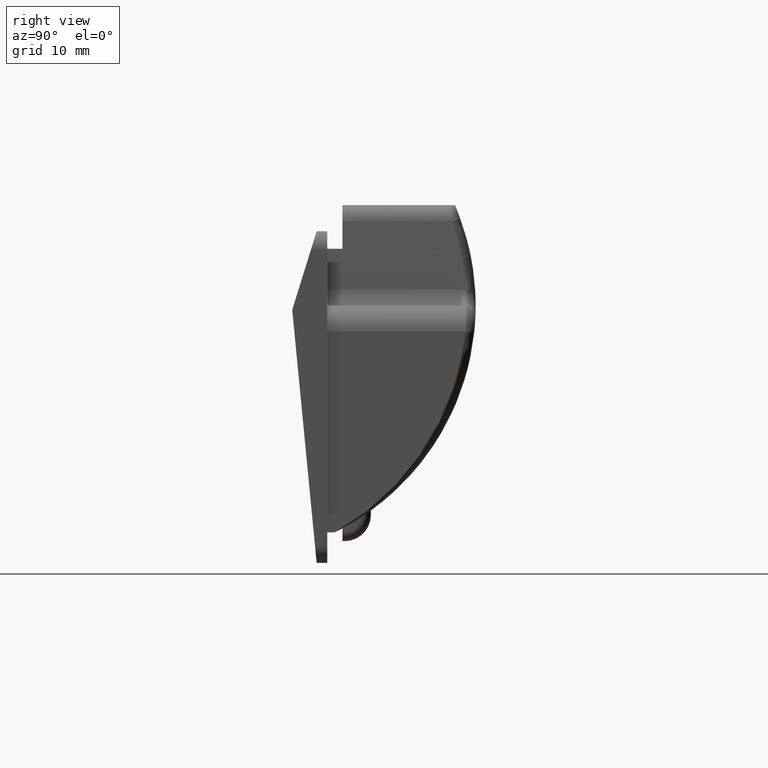
[diagram: clean part render]
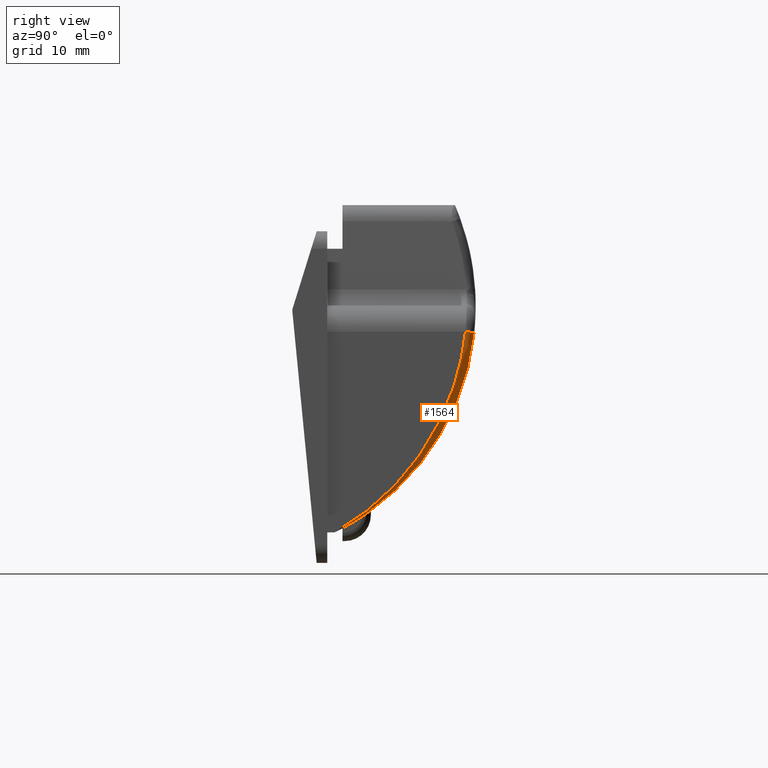
[diagram: same view with one face highlighted and labeled with its STEP entity id]
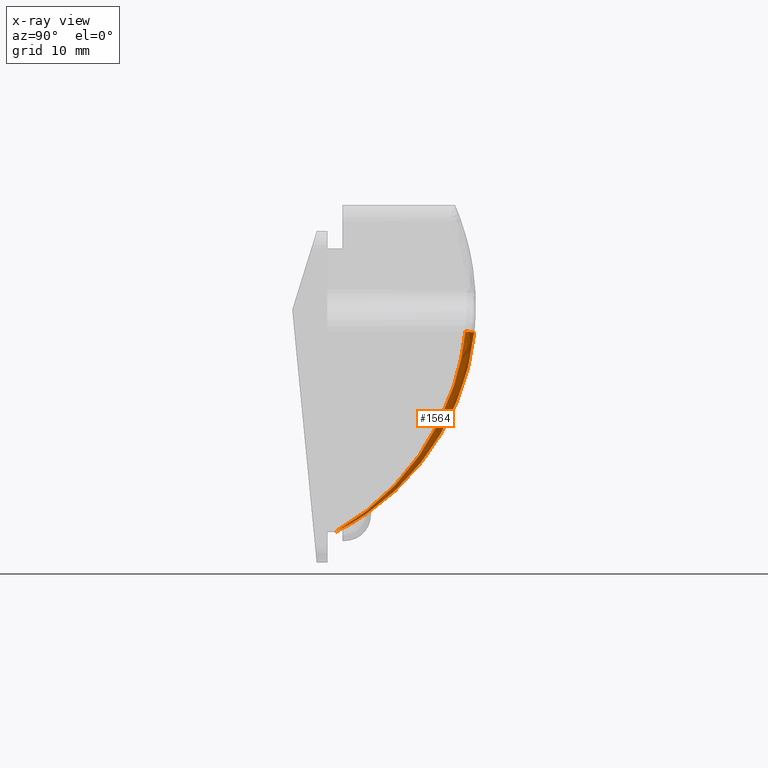
[diagram: x-ray of the same camera — body ghosted, the highlighted face saturated]
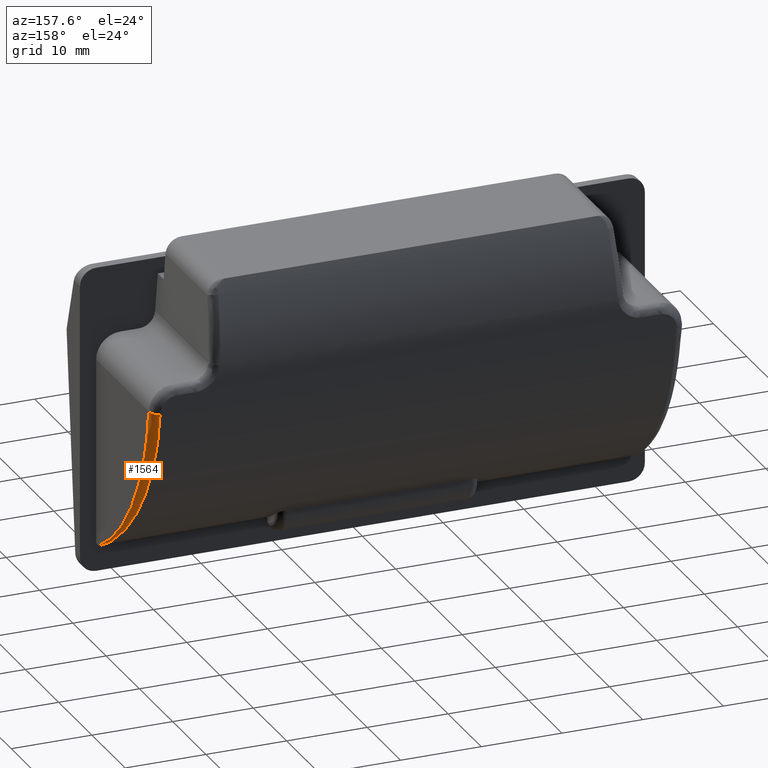
[diagram: same view with one face highlighted and labeled with its STEP entity id]
A machine part, right view. The second image highlights one B-rep face of the part: STEP entity #1564.
The next image is the same camera in x-ray: the body ghosted, the highlighted face saturated — about 0% of this face is hidden behind the body in this view.
A second angle (auxiliary view) of the same face is appended — the face is thin or edge-on in the first view.
In plain terms, the highlighted face is a freeform B-spline surface patch.
Its self-contained STEP definition (entity closure, byte-faithful):
#4 = CARTESIAN_POINT ( 'NONE',  ( 32.99999999998737400, 16.70300885055098700, 5.435982975352105000 ) ) ;
#22 = CARTESIAN_POINT ( 'NONE',  ( 32.99999999999995000, 0.8452325786653565000, -16.24999999999987900 ) ) ;
#39 = CARTESIAN_POINT ( 'NONE',  ( 32.11404258966066300, 14.72338672482740100, -1.529581798516154200 ) ) ;
#46 = EDGE_LOOP ( 'NONE', ( #732, #446, #473 ) ) ;
#49 = CARTESIAN_POINT ( 'NONE',  ( 32.14648437503910100, 14.23312463767132000, -2.671619303465260200 ) ) ;
#50 = CARTESIAN_POINT ( 'NONE',  ( 32.28286345691748200, 12.21477794852119000, -6.208333649131243500 ) ) ;
#54 = CARTESIAN_POINT ( 'NONE',  ( 33.00000000000000000, 5.090854368389241100, -13.36631434710976100 ) ) ;
#63 = CARTESIAN_POINT ( 'NONE',  ( 32.45163762144779400, 9.694275203025688000, -9.494982778757318400 ) ) ;
#73 = CARTESIAN_POINT ( 'NONE',  ( 32.62939973371035800, 6.957162645490490700, -12.19599503632543500 ) ) ;
#82 = CARTESIAN_POINT ( 'NONE',  ( 32.00000000000000000, 16.83306545036974800, 6.642857142857049100 ) ) ;
#84 = CARTESIAN_POINT ( 'NONE',  ( 32.81160905604316700, 4.031105423837402700, -14.41617165862395200 ) ) ;
#194 = CARTESIAN_POINT ( 'NONE',  ( 32.99999999999999300, 10.88588692710205000, -6.959499183001680600 ) ) ;
#209 = CARTESIAN_POINT ( 'NONE',  ( 33.00000000000000700, 14.20223565461469800, -0.3828904726064741900 ) ) ;
#226 = CARTESIAN_POINT ( 'NONE',  ( 33.00000000000000700, 6.222652843153937900, -12.37444569052263100 ) ) ;
#248 = CARTESIAN_POINT ( 'NONE',  ( 33.00000000000000000, 4.869393981790440600, -13.56422133526020200 ) ) ;
#262 = CARTESIAN_POINT ( 'NONE',  ( 32.35937499997255200, 11.08082831297906000, -7.849682348343471000 ) ) ;
#275 = CARTESIAN_POINT ( 'NONE',  ( 32.99999999999995700, 16.83306545036979800, 6.642857142857042000 ) ) ;
#277 = CARTESIAN_POINT ( 'NONE',  ( 33.00000000000000000, 5.887677918189321100, -12.67773010995676200 ) ) ;
#284 = CARTESIAN_POINT ( 'NONE',  ( 32.41015625007064900, 10.32324753599536000, -8.801174459383409100 ) ) ;
#291 = CARTESIAN_POINT ( 'NONE',  ( 32.02864613851882300, 16.09845712136423400, 2.549647856322993200 ) ) ;
#302 = CARTESIAN_POINT ( 'NONE',  ( 33.00000000002526000, 5.983033610331447400, -13.03341406686348900 ) ) ;
#308 = CARTESIAN_POINT ( 'NONE',  ( 32.15162645866152500, 14.15821372346313600, -2.776543988494512200 ) ) ;
#322 = CARTESIAN_POINT ( 'NONE',  ( 32.30194767209810200, 11.93224741456896800, -6.628592032507931700 ) ) ;
#330 = EDGE_CURVE ( 'NONE', #2690, #1383, #1515, .T. ) ;
#333 = CARTESIAN_POINT ( 'NONE',  ( 32.46035741133251000, 9.562250652395118100, -9.642517642330576100 ) ) ;
#344 = CARTESIAN_POINT ( 'NONE',  ( 32.63183629114841700, 6.918899739141931300, -12.22897483480254300 ) ) ;
#352 = CARTESIAN_POINT ( 'NONE',  ( 32.00781250002545200, 16.49707942486915300, 4.237294799419295500 ) ) ;
#356 = CARTESIAN_POINT ( 'NONE',  ( 32.81294261662463900, 4.009167447386076300, -14.43070688289443200 ) ) ;
#446 = ORIENTED_EDGE ( 'NONE', *, *, #1634, .F. ) ;
#470 = CARTESIAN_POINT ( 'NONE',  ( 33.00000000000000700, 11.13244009673370800, -6.585245898695654400 ) ) ;
#473 = ORIENTED_EDGE ( 'NONE', *, *, #1991, .F. ) ;
#484 = CARTESIAN_POINT ( 'NONE',  ( 32.99999999999999300, 14.49335652309202700, 0.4494383367939435200 ) ) ;
#534 = CARTESIAN_POINT ( 'NONE',  ( 33.00000000000000000, 12.43116167857730000, -4.428449217730030100 ) ) ;
#544 = CARTESIAN_POINT ( 'NONE',  ( 33.00000000000000000, 10.57208428949942000, -7.459287656251610200 ) ) ;
#575 = CARTESIAN_POINT ( 'NONE',  ( 33.00000000000000000, 13.46178440314303900, -2.304620486130050300 ) ) ;
#582 = CARTESIAN_POINT ( 'NONE',  ( 32.05371114095701300, 15.67030596323330700, 1.063763981909010600 ) ) ;
#590 = CARTESIAN_POINT ( 'NONE',  ( 32.51757812492925100, 8.694877570257899500, -10.60179345236777900 ) ) ;
#598 = CARTESIAN_POINT ( 'NONE',  ( 32.17607335215345200, 13.79432857345542400, -3.503800709733886400 ) ) ;
#604 = CARTESIAN_POINT ( 'NONE',  ( 32.69140625003310400, 5.983033610393650100, -13.03341406688776000 ) ) ;
#608 = CARTESIAN_POINT ( 'NONE',  ( 32.30946901900814100, 11.82078133934077100, -6.789974679852006600 ) ) ;
#619 = CARTESIAN_POINT ( 'NONE',  ( 32.46308392693600100, 9.520935738926523200, -9.688354824100654700 ) ) ;
#629 = CARTESIAN_POINT ( 'NONE',  ( 32.65885336929373000, 6.494451735422766900, -12.59381996070980300 ) ) ;
#636 = CARTESIAN_POINT ( 'NONE',  ( 32.83398385827274500, 3.662929933386710200, -14.65975901037703200 ) ) ;
#732 = ORIENTED_EDGE ( 'NONE', *, *, #330, .T. ) ;
#738 = CARTESIAN_POINT ( 'NONE',  ( 33.00000000000000700, 7.098059783362977300, -11.55230637195264800 ) ) ;
#749 = CARTESIAN_POINT ( 'NONE',  ( 33.00000000000000000, 11.98726088820319900, -5.203294322538648800 ) ) ;
#761 = CARTESIAN_POINT ( 'NONE',  ( 33.00000000000000000, 14.98803512896281700, 2.138537253261342900 ) ) ;
#793 = CARTESIAN_POINT ( 'NONE',  ( 33.00000000000000000, 14.68729622291481900, 1.006148619473470100 ) ) ;
#803 = CARTESIAN_POINT ( 'NONE',  ( 33.00000000000000000, 5.793533112741139100, -12.78937332464354200 ) ) ;
#816 = CARTESIAN_POINT ( 'NONE',  ( 33.00000000004207800, 1.933522285790362000, -15.71233329218290800 ) ) ;
#830 = CARTESIAN_POINT ( 'NONE',  ( 32.05859375003859700, 15.58227841752700000, 0.7116720753324490300 ) ) ;
#832 = CARTESIAN_POINT ( 'NONE',  ( 32.00000000000000000, 16.83306545036974800, 6.642857142857049100 ) ) ;
#841 = CARTESIAN_POINT ( 'NONE',  ( 32.99999999999995700, 16.83306545036979800, 6.642857142857042000 ) ) ;
#842 = CARTESIAN_POINT ( 'NONE',  ( 32.07379667361851700, 15.34675883628700500, 0.09606117074035988600 ) ) ;
#852 = CARTESIAN_POINT ( 'NONE',  ( 32.99999999997470500, 7.824095123420978100, -11.45091287932813600 ) ) ;
#857 = CARTESIAN_POINT ( 'NONE',  ( 32.18212552046202300, 13.70448802310387000, -3.676826752820423900 ) ) ;
#863 = CARTESIAN_POINT ( 'NONE',  ( 32.99999999997474000, 8.694877570310078200, -10.60179345238422000 ) ) ;
#868 = CARTESIAN_POINT ( 'NONE',  ( 32.31180247687352400, 11.78618835081953100, -6.839682637304408200 ) ) ;
#876 = CARTESIAN_POINT ( 'NONE',  ( 32.51554247061573500, 8.723280048828195600, -10.54566524191651000 ) ) ;
#884 = CARTESIAN_POINT ( 'NONE',  ( 32.73209515810720700, 5.325586523238374800, -13.50760397212717300 ) ) ;
#887 = CARTESIAN_POINT ( 'NONE',  ( 32.00000000000000000, 16.83306545036974800, 6.642857142857049100 ) ) ;
#892 = CARTESIAN_POINT ( 'NONE',  ( 32.92195560511749600, 2.190590512532216500, -15.54813243106552000 ) ) ;
#985 = CARTESIAN_POINT ( 'NONE',  ( 33.00000000000000700, 8.431746284231103100, -10.14014006299226100 ) ) ;
#986 = B_SPLINE_CURVE_WITH_KNOTS ( 'NONE', 3,
 ( #3313, #1595, #1929, #2661, #2910, #1114, #1658, #3090, #54, #277, #226, #1989, #3204, #738, #2563, #985, #2827, #1252, #3078, #1512, #3367, #1803, #194, #2071, #470, #2324, #749, #2580, #999, #2841, #1260, #3097, #1530, #3377, #1818, #209, #2081, #484, #2337, #761, #2590, #1012, #2857, #1272, #3108 ),
 .UNSPECIFIED., .F., .F.,
 ( 4, 1, 1, 2, 2, 1, 1, 2, 2, 1, 1, 2, 2, 1, 1, 2, 2, 1, 1, 2, 2, 1, 1, 2, 2, 1, 2, 2, 4 ),
 ( 0.0000000000000000000, 0.06250000000000025000, 0.09375000000000026400, 0.1093750000000002600, 0.1250000000000002800, 0.1875000000000003100, 0.2187500000000003100, 0.2343750000000003300, 0.2500000000000003300, 0.3125000000000002200, 0.3437500000000002200, 0.3593750000000002800, 0.3750000000000003300, 0.4375000000000001100, 0.4687500000000000600, 0.4843750000000000000, 0.4999999999999999400, 0.5624999999999997800, 0.5937499999999996700, 0.6093749999999997800, 0.6249999999999997800, 0.6875000000000000000, 0.7187500000000001100, 0.7343750000000000000, 0.7500000000000000000, 0.8125000000000000000, 0.8437500000000000000, 0.8750000000000000000, 1.000000000000000000 ),
 .UNSPECIFIED. ) ;
#999 = CARTESIAN_POINT ( 'NONE',  ( 33.00000000000000000, 12.68271515823235300, -3.897558294071827400 ) ) ;
#1012 = CARTESIAN_POINT ( 'NONE',  ( 33.00000000000000700, 15.20177669146854900, 2.996353030703813800 ) ) ;
#1044 = CARTESIAN_POINT ( 'NONE',  ( 33.00000000000000000, 8.352121328796778600, -10.26156907911032000 ) ) ;
#1055 = CARTESIAN_POINT ( 'NONE',  ( 33.00000000000412800, 5.012762166755276600, -13.76678927556183200 ) ) ;
#1064 = CARTESIAN_POINT ( 'NONE',  ( 33.00000000000000000, 7.534895445772430200, -11.13803999911509900 ) ) ;
#1076 = CARTESIAN_POINT ( 'NONE',  ( 32.93749988161729900, 1.933522280367109900, -15.71233329494890000 ) ) ;
#1083 = CARTESIAN_POINT ( 'NONE',  ( 32.00000000000000000, 16.83306545036974800, 6.642857142857049100 ) ) ;
#1093 = CARTESIAN_POINT ( 'NONE',  ( 33.00000000000000000, 11.85230490040021900, -5.462413615346339800 ) ) ;
#1098 = CARTESIAN_POINT ( 'NONE',  ( 32.08282886152537100, 15.20487904170183100, -0.2947654367081232700 ) ) ;
#1112 = CARTESIAN_POINT ( 'NONE',  ( 32.18399727844605000, 13.67671832146478300, -3.729854220209920500 ) ) ;
#1114 = CARTESIAN_POINT ( 'NONE',  ( 33.00000000000000000, 3.652525171916180600, -14.46011437706282100 ) ) ;
#1119 = CARTESIAN_POINT ( 'NONE',  ( 32.99999999998309600, 12.47086392568883700, -5.859300852574986800 ) ) ;
#1123 = CARTESIAN_POINT ( 'NONE',  ( 32.35859504236627500, 11.09148497491973900, -7.804249777394495000 ) ) ;
#1134 = CARTESIAN_POINT ( 'NONE',  ( 32.57224422653657600, 7.849036956797247600, -11.39507193378362300 ) ) ;
#1150 = CARTESIAN_POINT ( 'NONE',  ( 32.77176840835620200, 4.683047141774293800, -13.97133197292585300 ) ) ;
#1159 = CARTESIAN_POINT ( 'NONE',  ( 33.00000000000000000, 0.8452325786653279700, -16.25000000000000000 ) ) ;
#1252 = CARTESIAN_POINT ( 'NONE',  ( 33.00000000000000000, 8.919661005204730500, -9.572350024319966600 ) ) ;
#1260 = CARTESIAN_POINT ( 'NONE',  ( 33.00000000000000700, 12.88225160924179800, -3.498871508079627100 ) ) ;
#1272 = CARTESIAN_POINT ( 'NONE',  ( 32.99999999999999300, 15.71268661687400800, 5.579887050679730900 ) ) ;
#1305 = CARTESIAN_POINT ( 'NONE',  ( 33.00000000001674700, 16.49707942486598700, 4.237294799415606900 ) ) ;
#1316 = CARTESIAN_POINT ( 'NONE',  ( 33.00000000000417800, 13.10331300631138000, -4.820419708557616400 ) ) ;
#1341 = CARTESIAN_POINT ( 'NONE',  ( 32.87499999994720700, 2.988001279042344900, -15.10625217194325000 ) ) ;
#1357 = CARTESIAN_POINT ( 'NONE',  ( 32.08504407244447500, 15.17030193599934400, -0.3878048388614701000 ) ) ;
#1365 = CARTESIAN_POINT ( 'NONE',  ( 32.99999999999575800, 14.23312463766367300, -2.671619303459562600 ) ) ;
#1366 = CARTESIAN_POINT ( 'NONE',  ( 32.26562500002734900, 12.47086392568186000, -5.859300852586880400 ) ) ;
#1371 = CARTESIAN_POINT ( 'NONE',  ( 32.22273675438671600, 13.10336947189988000, -4.782350283122942100 ) ) ;
#1383 = VERTEX_POINT ( 'NONE', #3321 ) ;
#1386 = CARTESIAN_POINT ( 'NONE',  ( 32.40941416209963700, 10.33083591897525500, -8.754872280282226500 ) ) ;
#1388 = VERTEX_POINT ( 'NONE', #1454 ) ;
#1393 = CARTESIAN_POINT ( 'NONE',  ( 32.11328124996140300, 14.73048251070606100, -1.561708938999375000 ) ) ;
#1395 = CARTESIAN_POINT ( 'NONE',  ( 32.60580639993244700, 7.326731991402564100, -11.87225593557728400 ) ) ;
#1404 = CARTESIAN_POINT ( 'NONE',  ( 32.79863388417479100, 4.244209164365520900, -14.27369282591893200 ) ) ;
#1454 = CARTESIAN_POINT ( 'NONE',  ( 33.00000000000000000, 0.8452325786653279700, -16.25000000000000000 ) ) ;
#1512 = CARTESIAN_POINT ( 'NONE',  ( 33.00000000000000000, 9.489780149187707200, -8.883605685061562300 ) ) ;
#1515 =( BOUNDED_CURVE ( )  B_SPLINE_CURVE ( 2, ( #832, #841, #2105 ),
 .UNSPECIFIED., .F., .F. ) 
 B_SPLINE_CURVE_WITH_KNOTS ( ( 3, 3 ),
 ( 0.0000000000000000000, 1.000000000000000000 ),
 .UNSPECIFIED. ) 
 CURVE ( )  GEOMETRIC_REPRESENTATION_ITEM ( )  RATIONAL_B_SPLINE_CURVE ( ( 1.000000000000000000, 0.7071067811865220400, 1.000000000000000000 ) ) 
 REPRESENTATION_ITEM ( '' )  );
#1530 = CARTESIAN_POINT ( 'NONE',  ( 33.00000000000000000, 13.56526739950023800, -2.032399901261591400 ) ) ;
#1564 = ADVANCED_FACE ( 'NONE', ( #1947 ), #2570, .T. ) ;
#1595 = CARTESIAN_POINT ( 'NONE',  ( 32.99999999999999300, 1.374010219651666800, -15.95397679044651600 ) ) ;
#1634 = EDGE_CURVE ( 'NONE', #1388, #1383, #986, .T. ) ;
#1639 = CARTESIAN_POINT ( 'NONE',  ( 32.09919462574606500, 14.94989028896712000, -0.9761256161620404100 ) ) ;
#1650 = CARTESIAN_POINT ( 'NONE',  ( 32.99999999996620700, 14.73048251072345300, -1.561708938991507800 ) ) ;
#1657 = CARTESIAN_POINT ( 'NONE',  ( 32.26575304916004000, 12.46783909599735400, -5.819855034171442100 ) ) ;
#1658 = CARTESIAN_POINT ( 'NONE',  ( 32.99999999999999300, 3.776392424738871600, -14.37024057193940300 ) ) ;
#1668 = CARTESIAN_POINT ( 'NONE',  ( 32.43956703876849400, 9.876744803901649700, -9.288154550027602600 ) ) ;
#1680 = CARTESIAN_POINT ( 'NONE',  ( 32.62599753992973500, 7.010559684245381900, -12.14980513450384900 ) ) ;
#1694 = CARTESIAN_POINT ( 'NONE',  ( 32.22265624996089200, 13.10331300630374000, -4.820419708551970200 ) ) ;
#1698 = CARTESIAN_POINT ( 'NONE',  ( 32.80974502720496800, 4.061758930992390000, -14.39582102079099400 ) ) ;
#1803 = CARTESIAN_POINT ( 'NONE',  ( 32.99999999999999300, 10.63652414166032900, -7.329892774418823400 ) ) ;
#1818 = CARTESIAN_POINT ( 'NONE',  ( 32.99999999999999300, 14.10111607517766600, -0.6601269056069767300 ) ) ;
#1860 = CARTESIAN_POINT ( 'NONE',  ( 33.00000000000000000, 15.83882181415010100, 6.749999999999909400 ) ) ;
#1872 = CARTESIAN_POINT ( 'NONE',  ( 33.00000000000000000, 0.8452325786653569500, -16.25000000000000000 ) ) ;
#1880 = B_SPLINE_CURVE_WITH_KNOTS ( 'NONE', 3,
 ( #1083, #2926, #1902, #291, #2166, #582, #2416, #842, #2678, #1098, #2941, #1357, #3201, #1639, #39, #1914, #308, #2178, #598, #2430, #857, #2691, #1112, #2956, #1371, #3214, #1657, #50, #1924, #322, #2194, #608, #2440, #868, #2706, #1123, #2964, #1386, #3226, #1668, #63, #1936, #333, #2203, #619, #2449, #876, #2715, #1134, #2972, #1395, #3240, #1680, #73, #1950, #344, #2212, #629, #2464, #884, #2726, #1150, #2984, #1404, #3251, #1698, #84, #1959, #356, #2221, #636, #2472, #892, #2733, #1159 ),
 .UNSPECIFIED., .F., .F.,
 ( 4, 2, 2, 1, 1, 1, 1, 2, 2, 2, 1, 1, 1, 1, 2, 2, 2, 2, 1, 1, 1, 2, 2, 2, 2, 1, 1, 1, 2, 2, 2, 2, 1, 1, 1, 1, 2, 2, 2, 2, 1, 1, 1, 1, 1, 2, 2, 2, 4 ),
 ( 0.0000000000000000000, 0.1249999999999963100, 0.1874999999999944500, 0.2187499999999935300, 0.2343749999999930600, 0.2421874999999927800, 0.2460937499999926200, 0.2480468749999925300, 0.2499999999999924500, 0.3124999999999887900, 0.3437499999999869500, 0.3593749999999861200, 0.3671874999999857300, 0.3710937499999855100, 0.3730468749999854000, 0.3749999999999852900, 0.4374999999999811800, 0.4687499999999791800, 0.4843749999999782400, 0.4921874999999778500, 0.4960937499999776800, 0.4980468749999776300, 0.4999999999999775700, 0.5624999999999762400, 0.5937499999999756900, 0.6093749999999753500, 0.6171874999999752400, 0.6210937499999750200, 0.6230468749999749100, 0.6249999999999749100, 0.6874999999999752400, 0.7187499999999755800, 0.7343749999999756900, 0.7421874999999756900, 0.7460937499999758000, 0.7480468749999758000, 0.7490234374999759100, 0.7499999999999760200, 0.8124999999999883400, 0.8437499999999945600, 0.8593749999999974500, 0.8671874999999990000, 0.8710937499999997800, 0.8730468750000002200, 0.8740234375000004400, 0.8745117187500004400, 0.8750000000000005600, 0.9375000000000003300, 1.000000000000000000 ),
 .UNSPECIFIED. ) ;
#1898 = CARTESIAN_POINT ( 'NONE',  ( 33.00000000000000000, 1.905856945229959900, -15.65628840135899900 ) ) ;
#1902 = CARTESIAN_POINT ( 'NONE',  ( 32.00716176351890100, 16.51343347777986600, 4.322517555568122600 ) ) ;
#1910 = CARTESIAN_POINT ( 'NONE',  ( 33.00000000001676200, 11.08082831297212700, -7.849682348355332600 ) ) ;
#1914 = CARTESIAN_POINT ( 'NONE',  ( 32.13870079278569800, 14.35189298340504900, -2.360731897358336900 ) ) ;
#1924 = CARTESIAN_POINT ( 'NONE',  ( 32.29155856039885500, 12.08611905815965500, -6.402445169391259400 ) ) ;
#1929 = CARTESIAN_POINT ( 'NONE',  ( 33.00000000000000700, 2.152123101180014200, -15.48582898674086800 ) ) ;
#1936 = CARTESIAN_POINT ( 'NONE',  ( 32.45773253155248000, 9.602012647900169300, -9.598276377354684600 ) ) ;
#1947 = FACE_OUTER_BOUND ( 'NONE', #46, .T. ) ;
#1950 = CARTESIAN_POINT ( 'NONE',  ( 32.63086121506565700, 6.934213531337522200, -12.21578384848360700 ) ) ;
#1959 = CARTESIAN_POINT ( 'NONE',  ( 32.81240904335120900, 4.017945647305758400, -14.42489286335852100 ) ) ;
#1989 = CARTESIAN_POINT ( 'NONE',  ( 32.99999999999999300, 6.444520374887512800, -12.17043899107192900 ) ) ;
#1991 = EDGE_CURVE ( 'NONE', #2690, #1388, #1880, .T. ) ;
#2071 = CARTESIAN_POINT ( 'NONE',  ( 33.00000000000001400, 11.05036419947055900, -6.711201429110297500 ) ) ;
#2081 = CARTESIAN_POINT ( 'NONE',  ( 33.00000000000000700, 14.25219554342577400, -0.2427445728977360400 ) ) ;
#2105 = CARTESIAN_POINT ( 'NONE',  ( 33.00000000000000000, 15.83882181415010100, 6.749999999999920100 ) ) ;
#2124 = CARTESIAN_POINT ( 'NONE',  ( 32.99999999999572300, 2.988001279069272700, -15.10625217196728100 ) ) ;
#2149 = CARTESIAN_POINT ( 'NONE',  ( 32.57421874996679600, 7.824095123358779900, -11.45091287930380000 ) ) ;
#2166 = CARTESIAN_POINT ( 'NONE',  ( 32.03759793600335800, 15.93992579227830200, 1.955985645016716600 ) ) ;
#2173 = CARTESIAN_POINT ( 'NONE',  ( 33.00000000000000000, 15.71325180490060300, 5.584759628465660000 ) ) ;
#2178 = CARTESIAN_POINT ( 'NONE',  ( 32.16775038973145200, 13.91802319369308800, -3.261466585897051300 ) ) ;
#2194 = CARTESIAN_POINT ( 'NONE',  ( 32.30720343402357700, 11.85436374433416300, -6.741574435635131500 ) ) ;
#2203 = CARTESIAN_POINT ( 'NONE',  ( 32.46211017017471800, 9.535693492926871100, -9.672005547407390900 ) ) ;
#2212 = CARTESIAN_POINT ( 'NONE',  ( 32.63240561141734700, 6.909956751742672800, -12.23666884047681200 ) ) ;
#2220 = CARTESIAN_POINT ( 'NONE',  ( 32.03710937497444900, 15.93671292466634900, 1.875133312836805100 ) ) ;
#2221 = CARTESIAN_POINT ( 'NONE',  ( 32.81331634925187800, 4.003018065017951000, -14.43477667465044200 ) ) ;
#2324 = CARTESIAN_POINT ( 'NONE',  ( 33.00000000000000000, 11.53121258781538400, -5.963269584212286000 ) ) ;
#2337 = CARTESIAN_POINT ( 'NONE',  ( 32.99999999999999300, 14.75871891431202000, 1.288017809340350300 ) ) ;
#2386 = CARTESIAN_POINT ( 'NONE',  ( 33.00000000000000000, 15.52224005438175100, 4.426499564254689800 ) ) ;
#2416 = CARTESIAN_POINT ( 'NONE',  ( 32.06243912061578500, 15.52754240303650800, 0.6172247463165656500 ) ) ;
#2425 = CARTESIAN_POINT ( 'NONE',  ( 33.00000000002529500, 10.32324753594324200, -8.801174459367041800 ) ) ;
#2430 = CARTESIAN_POINT ( 'NONE',  ( 32.18030008258629200, 13.73157631000883100, -3.624925968247270500 ) ) ;
#2440 = CARTESIAN_POINT ( 'NONE',  ( 32.31098232357283000, 11.79834774128785000, -6.822236747390810800 ) ) ;
#2449 = CARTESIAN_POINT ( 'NONE',  ( 32.48893152554940400, 9.129120607530158100, -10.12161617267351100 ) ) ;
#2464 = CARTESIAN_POINT ( 'NONE',  ( 32.68692914248220700, 6.049939594349968500, -12.95612349641425700 ) ) ;
#2472 = CARTESIAN_POINT ( 'NONE',  ( 32.85978112595074700, 3.236610619110199300, -14.93226206075360300 ) ) ;
#2563 = CARTESIAN_POINT ( 'NONE',  ( 33.00000000000000700, 7.729344281017345600, -10.91602754556509300 ) ) ;
#2570 =( BOUNDED_SURFACE ( )  B_SPLINE_SURFACE ( 2, 3, ( 
 ( #82, #2936, #352, #2220, #830, #1393, #49, #1694, #1366, #262, #284, #590, #2149, #604, #2922, #1341, #1076, #2674 ),
 ( #275, #4, #1305, #2635, #3424, #1650, #1365, #1316, #1119, #1910, #2425, #863, #852, #302, #1055, #2124, #816, #22 ),
 ( #1860, #2173, #2386, #2934, #793, #2951, #575, #534, #1093, #544, #2699, #1044, #1064, #803, #248, #3154, #1898, #1872 ) ),
 .UNSPECIFIED., .F., .F., .F. ) 
 B_SPLINE_SURFACE_WITH_KNOTS ( ( 3, 3 ),
 ( 4, 2, 2, 2, 2, 2, 2, 2, 4 ),
 ( 0.0000000000000000000, 1.000000000000000000 ),
 ( 1.678145242896770000, 1.803716893606630100, 1.929288544316495100, 2.054860195026359600, 2.180431845736219700, 2.306003496446085200, 2.431575147155950100, 2.557146797865809800, 2.682718448575674800 ),
 .UNSPECIFIED. ) 
 GEOMETRIC_REPRESENTATION_ITEM ( )  RATIONAL_B_SPLINE_SURFACE ( (
 ( 1.000000000000000000, 1.000000000000000000, 1.000000000000000000, 1.000000000000000000, 1.000000000000000000, 1.000000000000000000, 1.000000000000000000, 1.000000000000000000, 1.000000000000000000, 1.000000000000000000, 1.000000000000000000, 1.000000000000000000, 1.000000000000000000, 1.000000000000000000, 1.000000000000000000, 1.000000000000000000, 1.000000000000000000, 1.000000000000000000),
 ( 0.7071067811865220400, 0.7071067811865220400, 0.7071067811865470200, 0.7071067811865470200, 0.7071067811865710000, 0.7071067811865710000, 0.7071067811865710000, 0.7071067811865710000, 0.7071067811865590100, 0.7071067811865590100, 0.7071067811865200400, 0.7071067811865200400, 0.7071067811864950600, 0.7071067811864950600, 0.7071067811866310600, 0.7071067811866310600, 0.7071067811864860700, 0.7071067811865480200),
 ( 1.000000000000000000, 1.000000000000000000, 1.000000000000000000, 1.000000000000000000, 1.000000000000000000, 1.000000000000000000, 1.000000000000000000, 1.000000000000000000, 1.000000000000000000, 1.000000000000000000, 1.000000000000000000, 1.000000000000000000, 1.000000000000000000, 1.000000000000000000, 1.000000000000000000, 1.000000000000000000, 1.000000000000000000, 1.000000000000000000) ) ) 
 REPRESENTATION_ITEM ( '' )  SURFACE ( )  );
#2580 = CARTESIAN_POINT ( 'NONE',  ( 33.00000000000000000, 12.47997953306253100, -4.292850069738938700 ) ) ;
#2590 = CARTESIAN_POINT ( 'NONE',  ( 32.99999999999999300, 15.13290234393686300, 2.708203542847468000 ) ) ;
#2635 = CARTESIAN_POINT ( 'NONE',  ( 32.99999999998309600, 15.93671292466956800, 1.875133312840488300 ) ) ;
#2661 = CARTESIAN_POINT ( 'NONE',  ( 33.00000000000000700, 3.033577698047721600, -14.89745881767750100 ) ) ;
#2674 = CARTESIAN_POINT ( 'NONE',  ( 33.00000000000000000, 0.8452325786653569500, -16.25000000000000000 ) ) ;
#2678 = CARTESIAN_POINT ( 'NONE',  ( 32.07976917763687700, 15.25277411990372700, -0.1644994387654737100 ) ) ;
#2690 = VERTEX_POINT ( 'NONE', #887 ) ;
#2691 = CARTESIAN_POINT ( 'NONE',  ( 32.18334558615171700, 13.68638589218196300, -3.711424923761227600 ) ) ;
#2699 = CARTESIAN_POINT ( 'NONE',  ( 33.00000000000000000, 9.870713142915359800, -8.422186501567610500 ) ) ;
#2706 = CARTESIAN_POINT ( 'NONE',  ( 32.33482074004975000, 11.44489471168019900, -7.328378421609897100 ) ) ;
#2715 = CARTESIAN_POINT ( 'NONE',  ( 32.55777879874067100, 8.072809510819697100, -11.18261591968072800 ) ) ;
#2726 = CARTESIAN_POINT ( 'NONE',  ( 32.74765922262258800, 5.074539950891972000, -13.69275358150285100 ) ) ;
#2733 = CARTESIAN_POINT ( 'NONE',  ( 32.95833281660601700, 1.570766656864786200, -15.89155177006838000 ) ) ;
#2827 = CARTESIAN_POINT ( 'NONE',  ( 33.00000000000000000, 8.725469304740459000, -9.800424959363764900 ) ) ;
#2841 = CARTESIAN_POINT ( 'NONE',  ( 33.00000000000000700, 12.81599901760303000, -3.632896803269282800 ) ) ;
#2857 = CARTESIAN_POINT ( 'NONE',  ( 33.00000000000000700, 15.52166406773103300, 4.423836991643692200 ) ) ;
#2910 = CARTESIAN_POINT ( 'NONE',  ( 33.00000000000001400, 3.405698861366420500, -14.63625780277746500 ) ) ;
#2922 = CARTESIAN_POINT ( 'NONE',  ( 32.75195312505280000, 5.012762166782200000, -13.76678927558596000 ) ) ;
#2926 = CARTESIAN_POINT ( 'NONE',  ( 32.00000020345702000, 16.70920208616121300, 5.493453767689516100 ) ) ;
#2934 = CARTESIAN_POINT ( 'NONE',  ( 33.00000000000000000, 15.00926827906120100, 2.137200081528874800 ) ) ;
#2936 = CARTESIAN_POINT ( 'NONE',  ( 32.00000000026945200, 16.70300885074929900, 5.435982975327700500 ) ) ;
#2941 = CARTESIAN_POINT ( 'NONE',  ( 32.08415589002314800, 15.18415866498670400, -0.3505896818473393000 ) ) ;
#2951 = CARTESIAN_POINT ( 'NONE',  ( 33.00000000000000000, 13.91355925580232100, -1.214764601392280200 ) ) ;
#2956 = CARTESIAN_POINT ( 'NONE',  ( 32.20290740223008200, 13.39623483871517700, -4.263308651567587800 ) ) ;
#2964 = CARTESIAN_POINT ( 'NONE',  ( 32.39643683924131100, 10.52548252135337500, -8.517313105071814100 ) ) ;
#2972 = CARTESIAN_POINT ( 'NONE',  ( 32.59452234586174800, 7.502625518700912500, -11.71327518522307900 ) ) ;
#2984 = CARTESIAN_POINT ( 'NONE',  ( 32.78401377346336400, 4.483570435190602900, -14.11083320091169900 ) ) ;
#3078 = CARTESIAN_POINT ( 'NONE',  ( 32.99999999999999300, 9.016826507523157700, -9.456445816658334300 ) ) ;
#3090 = CARTESIAN_POINT ( 'NONE',  ( 33.00000000000000700, 4.381779225904323600, -13.92382185062376000 ) ) ;
#3097 = CARTESIAN_POINT ( 'NONE',  ( 32.99999999999999300, 13.20335876733306800, -2.837188227331687500 ) ) ;
#3108 = CARTESIAN_POINT ( 'NONE',  ( 33.00000000000000000, 15.83882181415010100, 6.749999999999920100 ) ) ;
#3154 = CARTESIAN_POINT ( 'NONE',  ( 33.00000000000000000, 2.925545588153485100, -14.99769232009233900 ) ) ;
#3201 = CARTESIAN_POINT ( 'NONE',  ( 32.08552321482054700, 15.16283328208992600, -0.4077963323232317000 ) ) ;
#3204 = CARTESIAN_POINT ( 'NONE',  ( 33.00000000000000000, 6.555752903230517100, -12.06655673436100300 ) ) ;
#3214 = CARTESIAN_POINT ( 'NONE',  ( 32.25471917626170200, 12.63087046195874700, -5.560529422091613000 ) ) ;
#3226 = CARTESIAN_POINT ( 'NONE',  ( 32.42942523223724300, 10.02964514495714900, -9.110510797025199300 ) ) ;
#3240 = CARTESIAN_POINT ( 'NONE',  ( 32.61922486989491400, 7.116751187362993400, -12.05736387173448100 ) ) ;
#3251 = CARTESIAN_POINT ( 'NONE',  ( 32.80602740238603600, 4.122855596254667400, -14.35511564675659600 ) ) ;
#3313 = CARTESIAN_POINT ( 'NONE',  ( 33.00000000000000000, 0.8452325786653279700, -16.25000000000000000 ) ) ;
#3321 = CARTESIAN_POINT ( 'NONE',  ( 33.00000000000000000, 15.83882181415010100, 6.749999999999920100 ) ) ;
#3367 = CARTESIAN_POINT ( 'NONE',  ( 33.00000000000000000, 10.03614950407308900, -8.179773211785995800 ) ) ;
#3377 = CARTESIAN_POINT ( 'NONE',  ( 33.00000000000000000, 13.94650921132933300, -1.074635506461160400 ) ) ;
#3424 = CARTESIAN_POINT ( 'NONE',  ( 33.00000000003359400, 15.58227841750953100, 0.7116720753246258400 ) ) ;